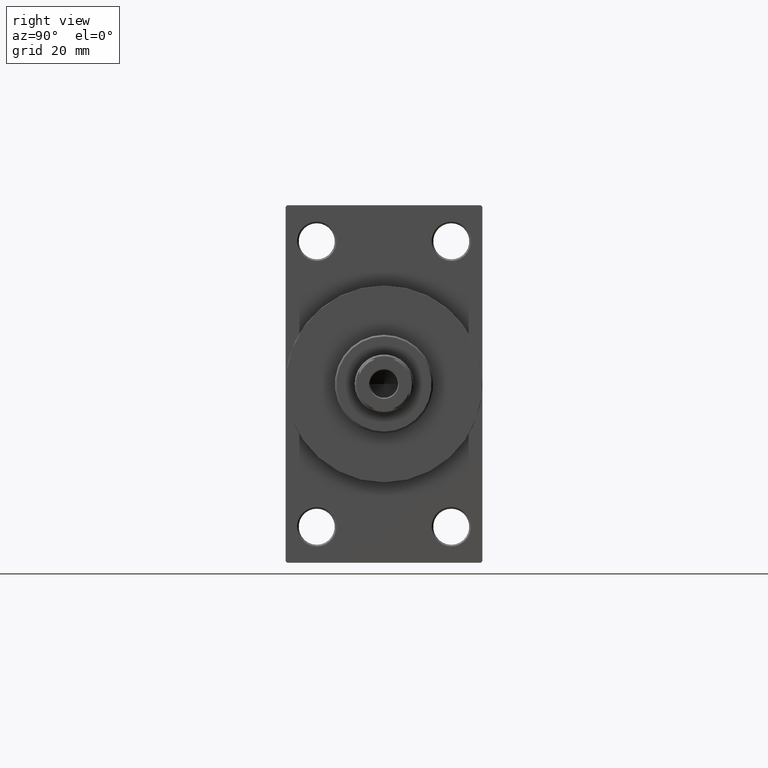
[diagram: clean part render]
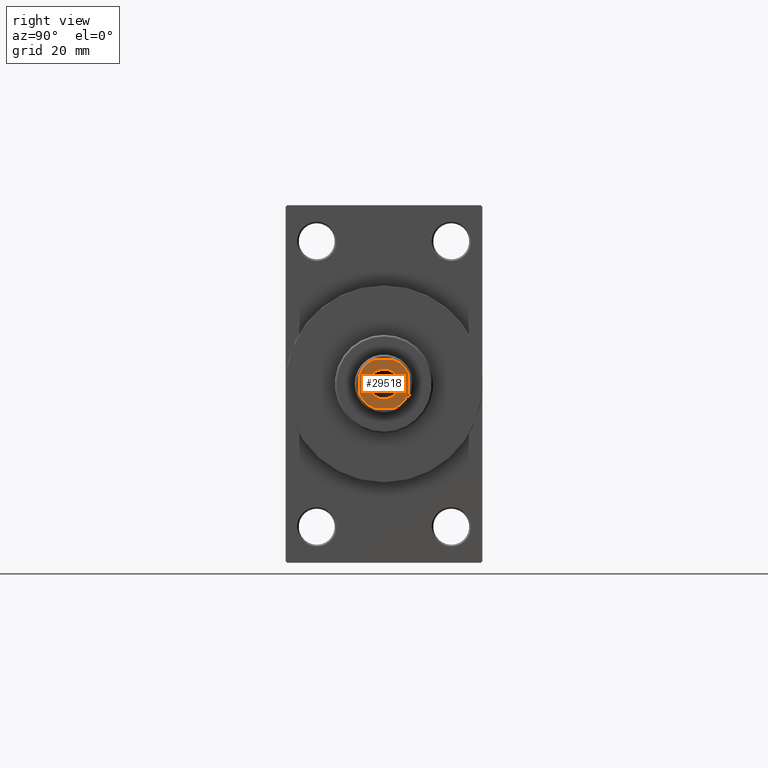
[diagram: same view with one face highlighted and labeled with its STEP entity id]
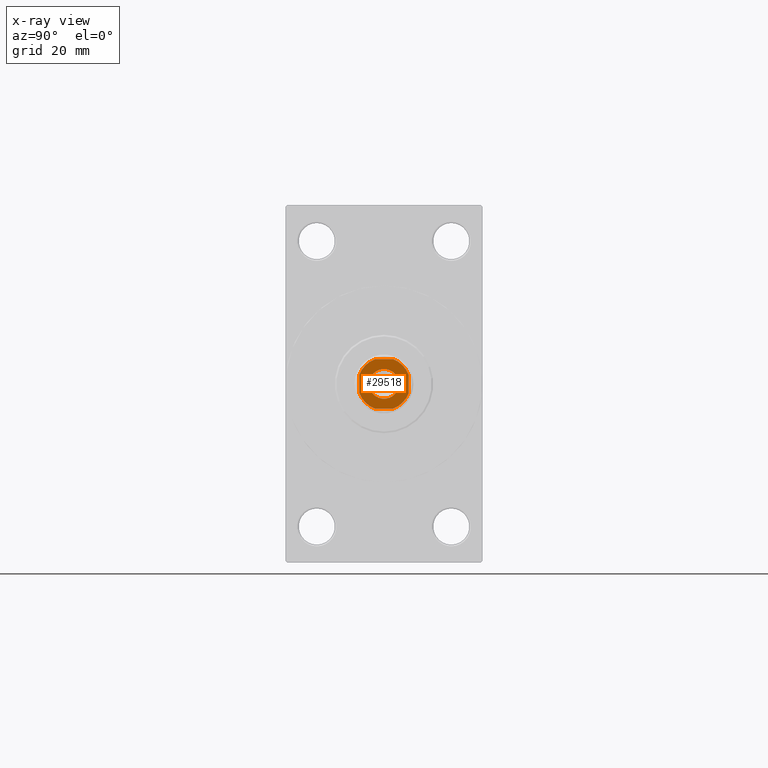
[diagram: x-ray of the same camera — body ghosted, the highlighted face saturated]
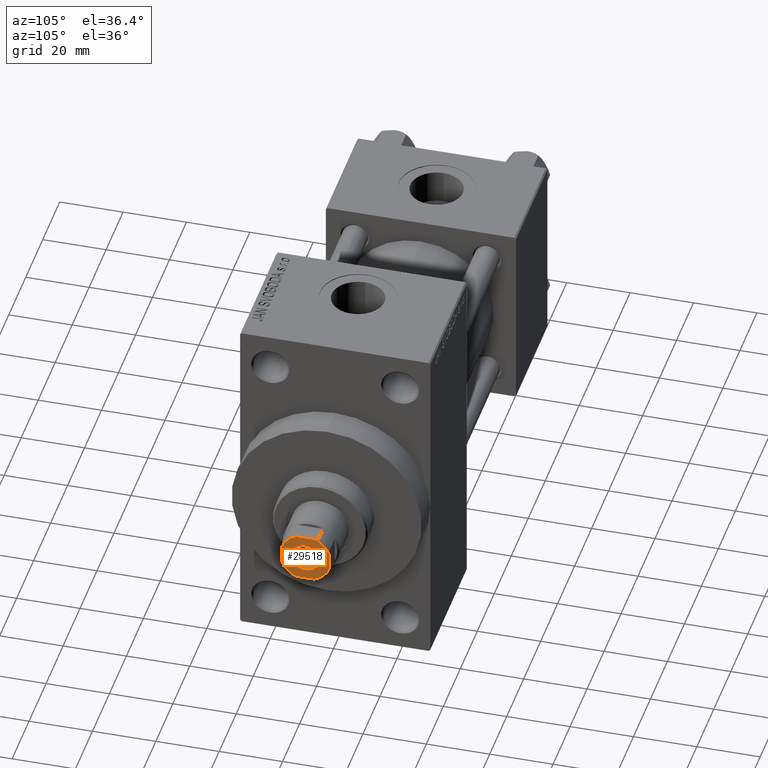
[diagram: same view with one face highlighted and labeled with its STEP entity id]
A machine part, right view. The second image highlights one B-rep face of the part: STEP entity #29518.
The next image is the same camera in x-ray: the body ghosted, the highlighted face saturated — about 0% of this face is hidden behind the body in this view.
A second angle (auxiliary view) of the same face is appended — the face is thin or edge-on in the first view.
In plain terms, the highlighted planar face has unit normal (1, 0, 0).
Its self-contained STEP definition (entity closure, byte-faithful):
#219 = VERTEX_POINT ( 'NONE', #12744 ) ;
#737 = VERTEX_POINT ( 'NONE', #36666 ) ;
#1274 = ORIENTED_EDGE ( 'NONE', *, *, #20034, .T. ) ;
#1535 = AXIS2_PLACEMENT_3D ( 'NONE', #39363, #14501, #6862 ) ;
#1790 = CARTESIAN_POINT ( 'NONE',  ( 0.000000000000000000, 0.000000000000000000, 136.0000000000000000 ) ) ;
#2272 = CIRCLE ( 'NONE', #8393, 7.999999999999979572 ) ;
#2595 = LINE ( 'NONE', #34834, #36431 ) ;
#3417 = VECTOR ( 'NONE', #38011, 1000.000000000000000 ) ;
#3518 = FACE_OUTER_BOUND ( 'NONE', #6006, .T. ) ;
#3695 = AXIS2_PLACEMENT_3D ( 'NONE', #12409, #23869, #5715 ) ;
#5251 = ORIENTED_EDGE ( 'NONE', *, *, #26230, .T. ) ;
#5715 = DIRECTION ( 'NONE',  ( 1.000000000000000000, 0.000000000000000000, 0.000000000000000000 ) ) ;
#5891 = DIRECTION ( 'NONE',  ( -0.000000000000000000, 0.000000000000000000, 1.000000000000000000 ) ) ;
#5914 = ORIENTED_EDGE ( 'NONE', *, *, #28381, .T. ) ;
#6006 = EDGE_LOOP ( 'NONE', ( #17620, #20714, #27832, #37869, #24161, #5914, #11458, #5251 ) ) ;
#6862 = DIRECTION ( 'NONE',  ( 1.000000000000000000, 0.000000000000000000, 0.000000000000000000 ) ) ;
#7072 = CARTESIAN_POINT ( 'NONE',  ( 0.000000000000000000, 0.000000000000000000, 136.0000000000000000 ) ) ;
#7589 = VECTOR ( 'NONE', #13756, 1000.000000000000000 ) ;
#8393 = AXIS2_PLACEMENT_3D ( 'NONE', #46119, #9334, #13372 ) ;
#9034 = EDGE_CURVE ( 'NONE', #737, #32896, #33572, .T. ) ;
#9102 = LINE ( 'NONE', #27478, #3417 ) ;
#9334 = DIRECTION ( 'NONE',  ( -0.000000000000000000, 0.000000000000000000, 1.000000000000000000 ) ) ;
#9696 = DIRECTION ( 'NONE',  ( 1.156482317317871725E-16, -1.000000000000000000, 0.000000000000000000 ) ) ;
#9987 = EDGE_LOOP ( 'NONE', ( #37748, #1274 ) ) ;
#11353 = DIRECTION ( 'NONE',  ( 0.000000000000000000, -0.000000000000000000, -1.000000000000000000 ) ) ;
#11458 = ORIENTED_EDGE ( 'NONE', *, *, #43932, .T. ) ;
#12409 = CARTESIAN_POINT ( 'NONE',  ( 0.000000000000000000, 0.000000000000000000, 136.0000000000000000 ) ) ;
#12744 = CARTESIAN_POINT ( 'NONE',  ( 4.549999999999970512, 0.000000000000000000, 136.0000000000000000 ) ) ;
#13372 = DIRECTION ( 'NONE',  ( 1.000000000000000000, 0.000000000000000000, 0.000000000000000000 ) ) ;
#13519 = LINE ( 'NONE', #31454, #7589 ) ;
#13756 = DIRECTION ( 'NONE',  ( -1.156482317317871478E-16, 1.000000000000000000, -0.000000000000000000 ) ) ;
#14501 = DIRECTION ( 'NONE',  ( -0.000000000000000000, 0.000000000000000000, 1.000000000000000000 ) ) ;
#14713 = DIRECTION ( 'NONE',  ( 1.000000000000000000, 0.000000000000000000, 0.000000000000000000 ) ) ;
#14745 = PLANE ( 'NONE',  #1535 ) ;
#15414 = VERTEX_POINT ( 'NONE', #31850 ) ;
#15502 = CARTESIAN_POINT ( 'NONE',  ( 0.000000000000000000, 0.000000000000000000, 136.0000000000000000 ) ) ;
#15553 = CARTESIAN_POINT ( 'NONE',  ( 7.500000000000000888, 2.783882181415126222, 136.0000000000000000 ) ) ;
#16098 = AXIS2_PLACEMENT_3D ( 'NONE', #15502, #44399, #19062 ) ;
#17091 = VERTEX_POINT ( 'NONE', #45398 ) ;
#17620 = ORIENTED_EDGE ( 'NONE', *, *, #27337, .T. ) ;
#18595 = CARTESIAN_POINT ( 'NONE',  ( 7.500000000000000888, -2.783882181415129331, 136.0000000000000000 ) ) ;
#19062 = DIRECTION ( 'NONE',  ( 1.000000000000000000, 0.000000000000000000, 0.000000000000000000 ) ) ;
#20034 = EDGE_CURVE ( 'NONE', #15414, #219, #24634, .T. ) ;
#20443 = VERTEX_POINT ( 'NONE', #27917 ) ;
#20714 = ORIENTED_EDGE ( 'NONE', *, *, #33652, .T. ) ;
#21577 = AXIS2_PLACEMENT_3D ( 'NONE', #7072, #11353, #14713 ) ;
#22002 = VERTEX_POINT ( 'NONE', #35458 ) ;
#22274 = CIRCLE ( 'NONE', #28383, 8.000000000000040856 ) ;
#23539 = EDGE_CURVE ( 'NONE', #22002, #737, #2595, .T. ) ;
#23869 = DIRECTION ( 'NONE',  ( -0.000000000000000000, 0.000000000000000000, 1.000000000000000000 ) ) ;
#24110 = CARTESIAN_POINT ( 'NONE',  ( -2.783882181414952139, -7.500000000000000000, 136.0000000000000000 ) ) ;
#24161 = ORIENTED_EDGE ( 'NONE', *, *, #41793, .T. ) ;
#24296 = CIRCLE ( 'NONE', #3695, 8.000000000000042633 ) ;
#24634 = CIRCLE ( 'NONE', #21577, 4.549999999999970512 ) ;
#26230 = EDGE_CURVE ( 'NONE', #20443, #36765, #24296, .T. ) ;
#27337 = EDGE_CURVE ( 'NONE', #36765, #39140, #13519, .T. ) ;
#27478 = CARTESIAN_POINT ( 'NONE',  ( -7.499999999999998224, -7.500000000000000000, 136.0000000000000000 ) ) ;
#27832 = ORIENTED_EDGE ( 'NONE', *, *, #23539, .T. ) ;
#27854 = CARTESIAN_POINT ( 'NONE',  ( 0.000000000000000000, 0.000000000000000000, 136.0000000000000000 ) ) ;
#27917 = CARTESIAN_POINT ( 'NONE',  ( 2.783882181415132440, -7.500000000000000000, 136.0000000000000000 ) ) ;
#28381 = EDGE_CURVE ( 'NONE', #17091, #45496, #2272, .T. ) ;
#28383 = AXIS2_PLACEMENT_3D ( 'NONE', #27854, #5891, #39103 ) ;
#29518 = ADVANCED_FACE ( 'NONE', ( #47242, #3518 ), #14745, .T. ) ;
#30215 = DIRECTION ( 'NONE',  ( -0.000000000000000000, 0.000000000000000000, 1.000000000000000000 ) ) ;
#30620 = CIRCLE ( 'NONE', #16098, 4.549999999999970512 ) ;
#31454 = CARTESIAN_POINT ( 'NONE',  ( 7.500000000000000000, 7.500000000000000000, 136.0000000000000000 ) ) ;
#31583 = EDGE_CURVE ( 'NONE', #219, #15414, #30620, .T. ) ;
#31685 = CARTESIAN_POINT ( 'NONE',  ( -7.500000000000000000, 7.499999999999998224, 136.0000000000000000 ) ) ;
#31850 = CARTESIAN_POINT ( 'NONE',  ( -4.549999999999970512, 5.572142936120421828E-16, 136.0000000000000000 ) ) ;
#31967 = DIRECTION ( 'NONE',  ( -1.000000000000000000, -1.156482317317871478E-16, -0.000000000000000000 ) ) ;
#32896 = VERTEX_POINT ( 'NONE', #43933 ) ;
#33572 = CIRCLE ( 'NONE', #35850, 7.999999999999981348 ) ;
#33652 = EDGE_CURVE ( 'NONE', #39140, #22002, #22274, .T. ) ;
#34263 = DIRECTION ( 'NONE',  ( 1.000000000000000000, 0.000000000000000000, 0.000000000000000000 ) ) ;
#34834 = CARTESIAN_POINT ( 'NONE',  ( -7.500000000000000000, 7.499999999999998224, 136.0000000000000000 ) ) ;
#35458 = CARTESIAN_POINT ( 'NONE',  ( 2.783882181415129331, 7.499999999999999112, 136.0000000000000000 ) ) ;
#35850 = AXIS2_PLACEMENT_3D ( 'NONE', #1790, #30215, #34263 ) ;
#36431 = VECTOR ( 'NONE', #31967, 1000.000000000000000 ) ;
#36666 = CARTESIAN_POINT ( 'NONE',  ( -2.783882181414960577, 7.499999999999999112, 136.0000000000000000 ) ) ;
#36765 = VERTEX_POINT ( 'NONE', #18595 ) ;
#37748 = ORIENTED_EDGE ( 'NONE', *, *, #31583, .T. ) ;
#37869 = ORIENTED_EDGE ( 'NONE', *, *, #9034, .T. ) ;
#38011 = DIRECTION ( 'NONE',  ( 1.000000000000000000, 0.000000000000000000, 0.000000000000000000 ) ) ;
#39103 = DIRECTION ( 'NONE',  ( 1.000000000000000000, 0.000000000000000000, 0.000000000000000000 ) ) ;
#39140 = VERTEX_POINT ( 'NONE', #15553 ) ;
#39363 = CARTESIAN_POINT ( 'NONE',  ( 0.000000000000000000, 0.000000000000000000, 136.0000000000000000 ) ) ;
#41793 = EDGE_CURVE ( 'NONE', #32896, #17091, #42913, .T. ) ;
#42913 = LINE ( 'NONE', #31685, #44552 ) ;
#43932 = EDGE_CURVE ( 'NONE', #45496, #20443, #9102, .T. ) ;
#43933 = CARTESIAN_POINT ( 'NONE',  ( -7.499999999999999112, 2.783882181414961021, 136.0000000000000000 ) ) ;
#44399 = DIRECTION ( 'NONE',  ( 0.000000000000000000, -0.000000000000000000, -1.000000000000000000 ) ) ;
#44552 = VECTOR ( 'NONE', #9696, 1000.000000000000000 ) ;
#45398 = CARTESIAN_POINT ( 'NONE',  ( -7.499999999999997335, -2.783882181414957468, 136.0000000000000000 ) ) ;
#45496 = VERTEX_POINT ( 'NONE', #24110 ) ;
#46119 = CARTESIAN_POINT ( 'NONE',  ( 0.000000000000000000, 0.000000000000000000, 136.0000000000000000 ) ) ;
#47242 = FACE_BOUND ( 'NONE', #9987, .T. ) ;